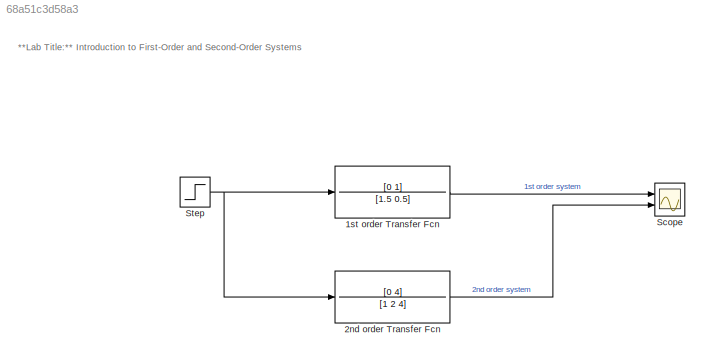
MODEL slx_68a51c3d58a3
KIND model
CONFIG AbsTol = auto
CONFIG EnableMultiTasking = off
CONFIG FixedStep = auto
CONFIG MaxStep = 1e-3
CONFIG MinStep = auto
CONFIG RelTol = 1e-3
CONFIG SampleTimeConstraint = Unconstrained
CONFIG SolverName = VariableStepAuto
CONFIG StartTime = 0.0
CONFIG StopTime = 30
BLOCK [TransferFcn] 1st order Transfer Fcn
  Denominator = [1.5 0.5]
  Numerator = [0 1]
BLOCK [TransferFcn] 2nd order Transfer Fcn
  Denominator = [1 2 4]
  Numerator = [0 4]
BLOCK [Scope] Scope
  Floating = off
  NumInputPorts = 2
  Ports = [2]
  ScopeSpecificationString = Simulink.scopes.TimeScopeBlockCfg('CurrentConfiguration', extmgr.ConfigurationSet(extmgr.Configuration('Core','General UI',true),extmgr.Configuration('Core','Source UI',true),extmgr.Configuration('Sources','WiredSimulink',true),extmgr.Configuration('Visuals','Time Domain',true,'SerializedDisplays',{struct('MinYLimReal','-0.24998','MaxYLimReal','2.24986','YLabelReal','','MinYLimMag','0.00000','MaxY...<+2081ch>
BLOCK [Step] Step
  SampleTime = 0
ANNOTATION (root): * *Lab Title:** Introduction to First-Order and Second-Order Systems
LINE 1st order Transfer Fcn:1 -> Scope:1
LINE 2nd order Transfer Fcn:1 -> Scope:2
NET Step:1 -> 1st order Transfer Fcn:1, 2nd order Transfer Fcn:1
note: NET lines group one-source signal fan-out (src -> all destinations, sorted); 1:1 wires keep LINE
